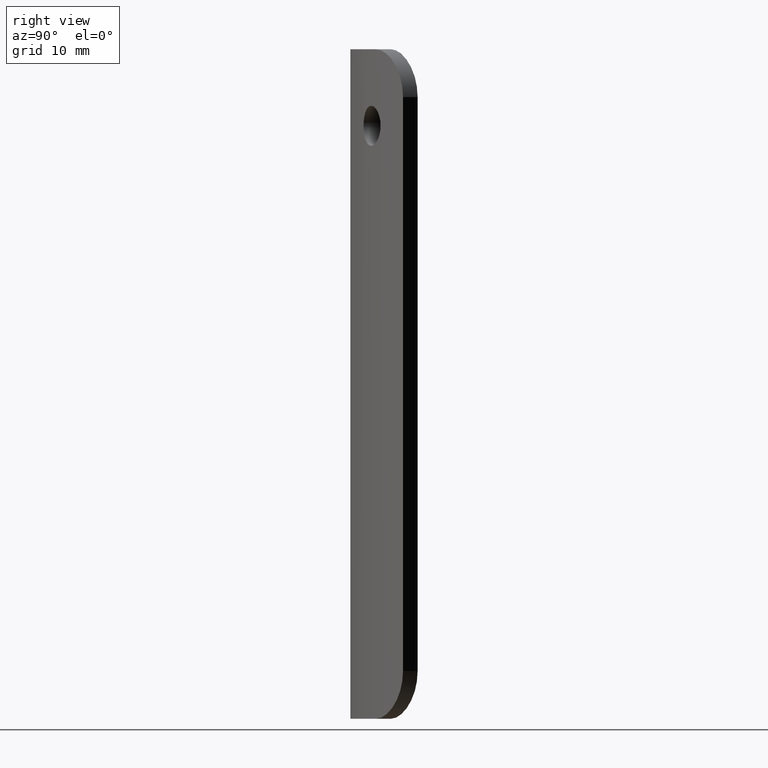
[diagram: clean part render]
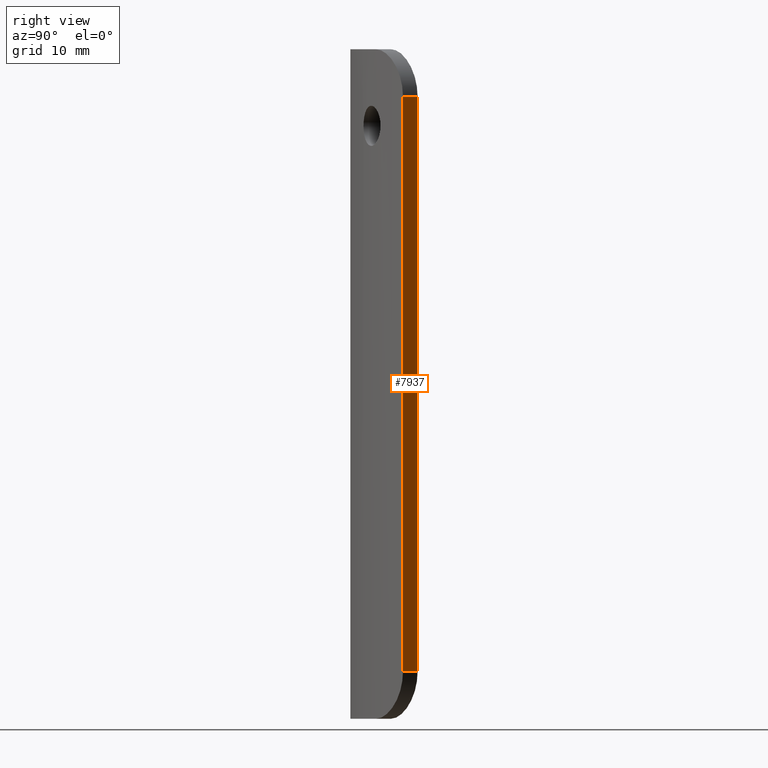
[diagram: same view with one face highlighted and labeled with its STEP entity id]
A machine part, right view. The second image highlights one B-rep face of the part: STEP entity #7937.
In plain terms, the highlighted planar face has unit normal (-0.7629, -0.6466, 0).
Its self-contained STEP definition (entity closure, byte-faithful):
#244 = DIRECTION ( 'NONE',  ( -0.0000000000000000000, -0.0000000000000000000, -1.000000000000000000 ) ) ;
#287 = VECTOR ( 'NONE', #9543, 1000.000000000000200 ) ;
#322 = CARTESIAN_POINT ( 'NONE',  ( 15.00000000000000000, 5.501412485737739100, -30.00000000000000000 ) ) ;
#789 = DIRECTION ( 'NONE',  ( -0.0000000000000000000, -0.0000000000000000000, -1.000000000000000000 ) ) ;
#1294 = DIRECTION ( 'NONE',  ( 0.6465517241379309400, -0.7628701514768215800, -0.0000000000000000000 ) ) ;
#1461 = PLANE ( 'NONE',  #4303 ) ;
#1583 = DIRECTION ( 'NONE',  ( 0.6465517241379309400, -0.7628701514768215800, 0.0000000000000000000 ) ) ;
#1918 = EDGE_CURVE ( 'NONE', #6665, #4764, #2826, .T. ) ;
#2394 = CARTESIAN_POINT ( 'NONE',  ( 15.00000000000000000, 5.501412485737739100, 30.00000000000000400 ) ) ;
#2826 = LINE ( 'NONE', #3044, #10125 ) ;
#3044 = CARTESIAN_POINT ( 'NONE',  ( 15.00000000000000500, 5.501412485737732900, 30.00000000000000400 ) ) ;
#3479 = CARTESIAN_POINT ( 'NONE',  ( 13.70689655172413900, 7.027152788691381600, 35.00000000000000000 ) ) ;
#3492 = VECTOR ( 'NONE', #244, 1000.000000000000000 ) ;
#4142 = ORIENTED_EDGE ( 'NONE', *, *, #1918, .T. ) ;
#4190 = DIRECTION ( 'NONE',  ( -0.7628701514768216900, -0.6465517241379310500, 0.0000000000000000000 ) ) ;
#4303 = AXIS2_PLACEMENT_3D ( 'NONE', #8600, #4190, #1583 ) ;
#4764 = VERTEX_POINT ( 'NONE', #2394 ) ;
#5287 = EDGE_LOOP ( 'NONE', ( #8277, #11158, #6918, #4142 ) ) ;
#5592 = LINE ( 'NONE', #9225, #3492 ) ;
#6451 = FACE_OUTER_BOUND ( 'NONE', #5287, .T. ) ;
#6665 = VERTEX_POINT ( 'NONE', #9750 ) ;
#6775 = VERTEX_POINT ( 'NONE', #7304 ) ;
#6903 = EDGE_CURVE ( 'NONE', #11276, #6775, #7515, .T. ) ;
#6918 = ORIENTED_EDGE ( 'NONE', *, *, #10369, .F. ) ;
#7304 = CARTESIAN_POINT ( 'NONE',  ( 13.70689655172413900, 7.027152788691381600, -30.00000000000000000 ) ) ;
#7515 = LINE ( 'NONE', #11162, #287 ) ;
#7937 = ADVANCED_FACE ( 'NONE', ( #6451 ), #1461, .F. ) ;
#8221 = VECTOR ( 'NONE', #789, 1000.000000000000000 ) ;
#8277 = ORIENTED_EDGE ( 'NONE', *, *, #9320, .T. ) ;
#8600 = CARTESIAN_POINT ( 'NONE',  ( 13.70689655172413900, 7.027152788691381600, 35.00000000000000000 ) ) ;
#9225 = CARTESIAN_POINT ( 'NONE',  ( 15.00000000000000000, 5.501412485737739100, 35.00000000000000000 ) ) ;
#9320 = EDGE_CURVE ( 'NONE', #4764, #11276, #5592, .T. ) ;
#9543 = DIRECTION ( 'NONE',  ( -0.6465517241379309400, 0.7628701514768215800, 0.0000000000000000000 ) ) ;
#9750 = CARTESIAN_POINT ( 'NONE',  ( 13.70689655172413900, 7.027152788691381600, 30.00000000000000400 ) ) ;
#10125 = VECTOR ( 'NONE', #1294, 1000.000000000000200 ) ;
#10369 = EDGE_CURVE ( 'NONE', #6665, #6775, #10633, .T. ) ;
#10633 = LINE ( 'NONE', #3479, #8221 ) ;
#11158 = ORIENTED_EDGE ( 'NONE', *, *, #6903, .T. ) ;
#11162 = CARTESIAN_POINT ( 'NONE',  ( 13.70689655172413900, 7.027152788691381600, -30.00000000000000000 ) ) ;
#11276 = VERTEX_POINT ( 'NONE', #322 ) ;